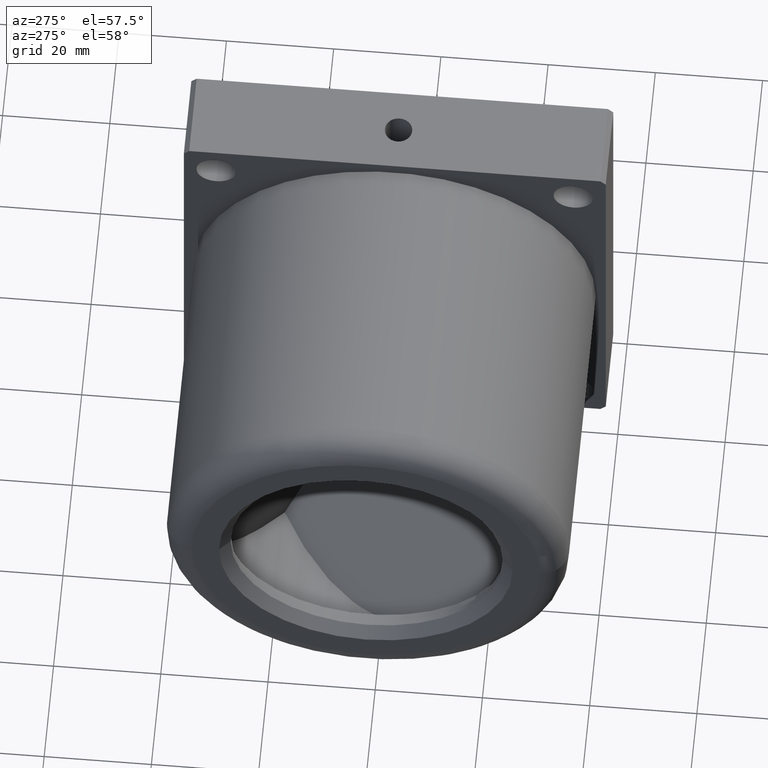
[diagram: clean part render]
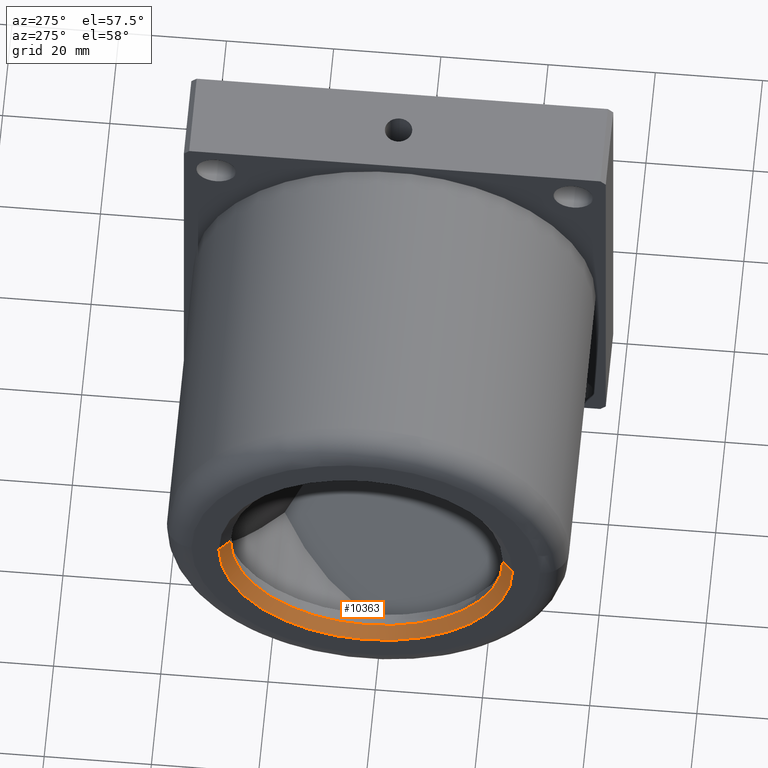
[diagram: same view with one face highlighted and labeled with its STEP entity id]
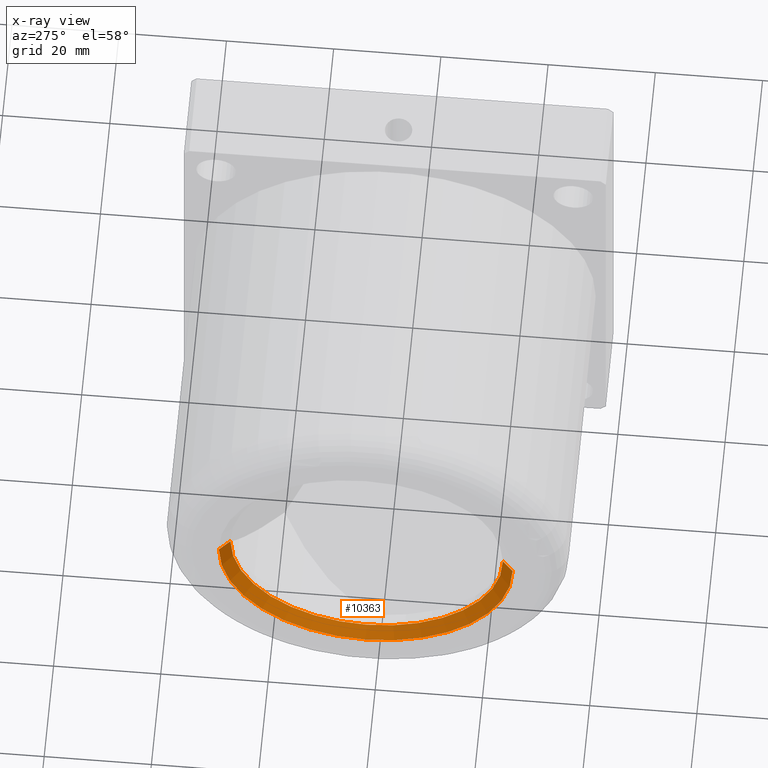
[diagram: x-ray of the same camera — body ghosted, the highlighted face saturated]
A machine part, auxiliary view. The second image highlights one B-rep face of the part: STEP entity #10363.
The next image is the same camera in x-ray: the body ghosted, the highlighted face saturated — about 0% of this face is hidden behind the body in this view.
In plain terms, the highlighted conical surface has half-angle 45 deg.
Its self-contained STEP definition (entity closure, byte-faithful):
#349 = CONICAL_SURFACE ( 'NONE', #5065, 27.39999999999999500, 0.7853981633974447300 ) ;
#415 = CIRCLE ( 'NONE', #3088, 27.39999999999999500 ) ;
#1157 = CARTESIAN_POINT ( 'NONE',  ( -78.00000000000000000, -145.4499999999999900, 3.150368854676342100E-013 ) ) ;
#1160 = EDGE_CURVE ( 'NONE', #7382, #9255, #6283, .T. ) ;
#1428 = VERTEX_POINT ( 'NONE', #4681 ) ;
#1517 = DIRECTION ( 'NONE',  ( -1.000000000000000000, 0.0000000000000000000, 0.0000000000000000000 ) ) ;
#1819 = CIRCLE ( 'NONE', #7148, 25.39999999999999100 ) ;
#2842 = ORIENTED_EDGE ( 'NONE', *, *, #8141, .F. ) ;
#3088 = AXIS2_PLACEMENT_3D ( 'NONE', #4261, #10003, #5096 ) ;
#3295 = CARTESIAN_POINT ( 'NONE',  ( -76.00000000000000000, -92.65000000000000600, -2.652988939644272500E-013 ) ) ;
#4098 = VECTOR ( 'NONE', #9570, 1000.000000000000000 ) ;
#4261 = CARTESIAN_POINT ( 'NONE',  ( -78.00000000000000000, -118.0500000000000000, 1.387778780781446000E-014 ) ) ;
#4333 = EDGE_CURVE ( 'NONE', #1428, #6556, #10149, .T. ) ;
#4681 = CARTESIAN_POINT ( 'NONE',  ( -76.00000000000000000, -143.4499999999999900, 2.961650724498904000E-013 ) ) ;
#4818 = EDGE_CURVE ( 'NONE', #7382, #1428, #1819, .T. ) ;
#4995 = DIRECTION ( 'NONE',  ( 0.0000000000000000000, -1.000000000000000000, 1.099120794378904300E-014 ) ) ;
#5065 = AXIS2_PLACEMENT_3D ( 'NONE', #5783, #5750, #4995 ) ;
#5096 = DIRECTION ( 'NONE',  ( 0.0000000000000000000, -1.000000000000000000, 1.099120794378904300E-014 ) ) ;
#5424 = ORIENTED_EDGE ( 'NONE', *, *, #4333, .F. ) ;
#5750 = DIRECTION ( 'NONE',  ( -1.000000000000000000, 0.0000000000000000000, 0.0000000000000000000 ) ) ;
#5783 = CARTESIAN_POINT ( 'NONE',  ( -78.00000000000000000, -118.0500000000000000, 1.387778780781446000E-014 ) ) ;
#5789 = VECTOR ( 'NONE', #6071, 1000.000000000000000 ) ;
#6071 = DIRECTION ( 'NONE',  ( -0.7071067811865500200, -0.7071067811865450200, 7.771957670484653100E-015 ) ) ;
#6166 = FACE_OUTER_BOUND ( 'NONE', #10044, .T. ) ;
#6283 = LINE ( 'NONE', #9495, #4098 ) ;
#6553 = CARTESIAN_POINT ( 'NONE',  ( -76.00000000000000000, -118.0500000000000000, 1.387778780781446000E-014 ) ) ;
#6556 = VERTEX_POINT ( 'NONE', #1157 ) ;
#7148 = AXIS2_PLACEMENT_3D ( 'NONE', #6553, #1517, #7333 ) ;
#7333 = DIRECTION ( 'NONE',  ( 0.0000000000000000000, -1.000000000000000000, 1.099120794378904500E-014 ) ) ;
#7382 = VERTEX_POINT ( 'NONE', #3295 ) ;
#7425 = ORIENTED_EDGE ( 'NONE', *, *, #4818, .F. ) ;
#8141 = EDGE_CURVE ( 'NONE', #6556, #9255, #415, .T. ) ;
#9255 = VERTEX_POINT ( 'NONE', #9556 ) ;
#9495 = CARTESIAN_POINT ( 'NONE',  ( -78.00000000000000000, -90.65000000000000600, -2.839257776223415400E-013 ) ) ;
#9556 = CARTESIAN_POINT ( 'NONE',  ( -78.00000000000000000, -90.65000000000000600, -2.839257776223415400E-013 ) ) ;
#9570 = DIRECTION ( 'NONE',  ( -0.7071067811865500200, 0.7071067811865450200, -7.685362064861103200E-015 ) ) ;
#10003 = DIRECTION ( 'NONE',  ( 1.000000000000000000, -0.0000000000000000000, -0.0000000000000000000 ) ) ;
#10044 = EDGE_LOOP ( 'NONE', ( #7425, #10385, #2842, #5424 ) ) ;
#10149 = LINE ( 'NONE', #10169, #5789 ) ;
#10169 = CARTESIAN_POINT ( 'NONE',  ( -78.00000000000000000, -145.4499999999999900, 3.150368854676342100E-013 ) ) ;
#10363 = ADVANCED_FACE ( 'NONE', ( #6166 ), #349, .F. ) ;
#10385 = ORIENTED_EDGE ( 'NONE', *, *, #1160, .T. ) ;